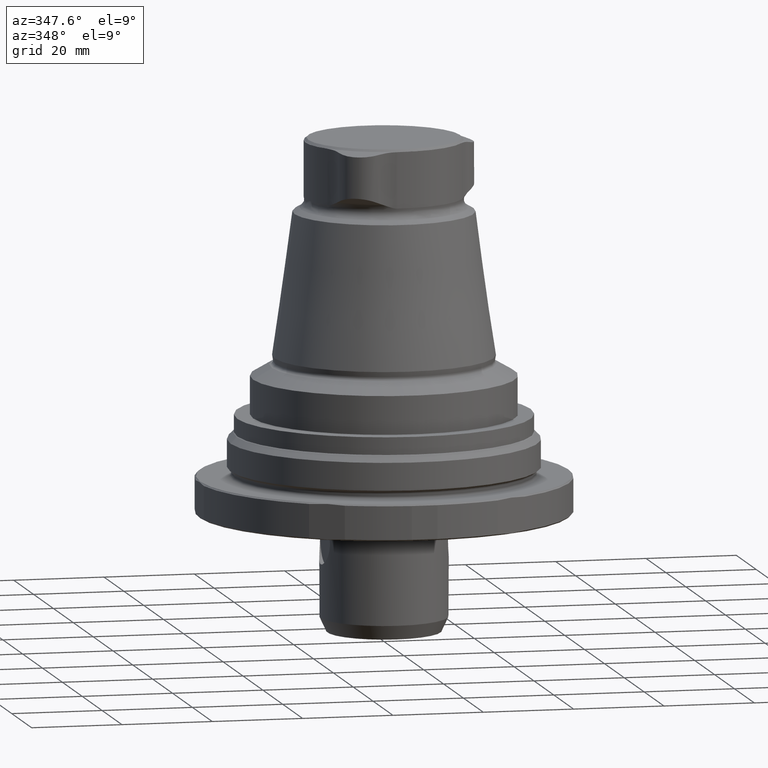
[diagram: clean part render]
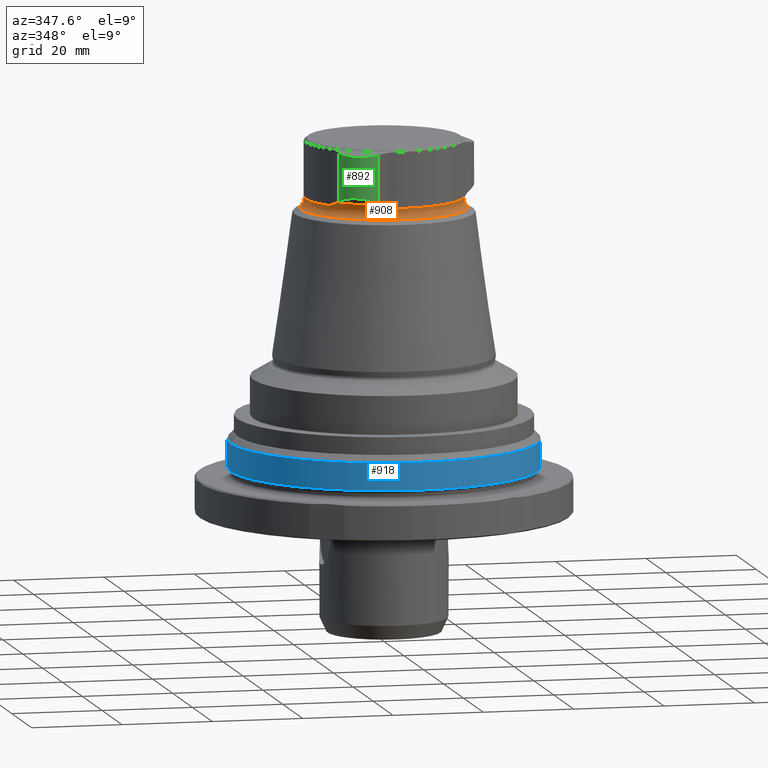
[diagram: same view with three faces highlighted in distinct colors, each labeled with its STEP entity id]
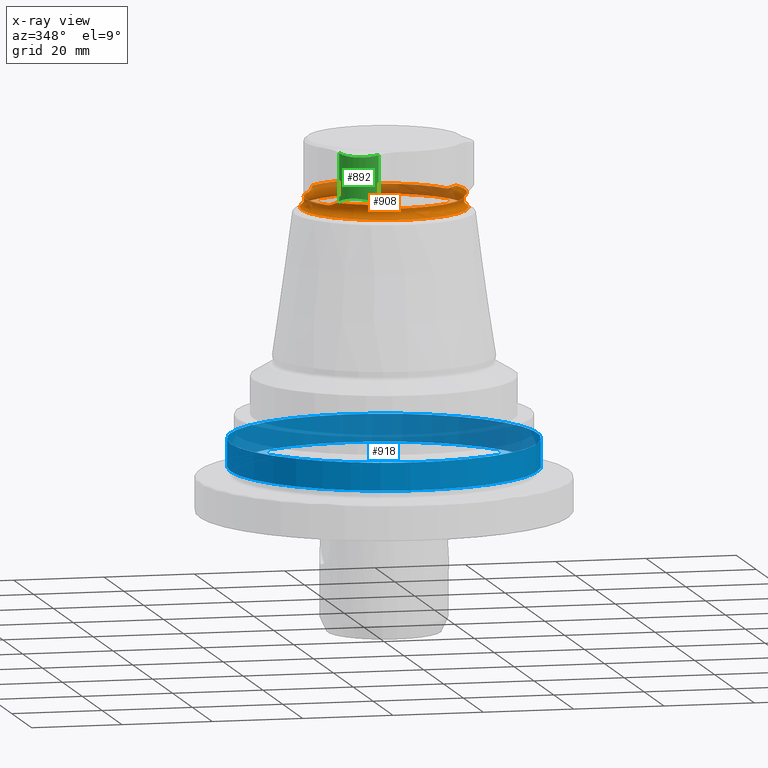
[diagram: x-ray of the same camera — body ghosted, the three highlighted faces saturated]
A machine part, auxiliary view with three faces highlighted in distinct colors.
The next image is the same camera in x-ray (body ghosted, the three faces saturated) — at least one of them is partly hidden behind the body in this view.
Their STEP definitions:

[orange] entity #908 — the highlighted toroidal blend (fillet) surface has major radius 19.28 mm and minor (blend) radius 2 mm.
#20=TOROIDAL_SURFACE('',#1001,19.28,2.);
#122=CIRCLE('',#985,17.9944247806269);
#123=CIRCLE('',#988,17.38);
#124=CIRCLE('',#991,17.9944247806269);
#125=CIRCLE('',#994,17.38);
#126=CIRCLE('',#997,17.9944247806269);
#127=CIRCLE('',#1000,17.38);
#128=CIRCLE('',#1002,18.28);
#257=ORIENTED_EDGE('',*,*,#465,.F.);
#258=ORIENTED_EDGE('',*,*,#464,.T.);
#259=ORIENTED_EDGE('',*,*,#463,.T.);
#260=ORIENTED_EDGE('',*,*,#460,.T.);
#261=ORIENTED_EDGE('',*,*,#459,.T.);
#262=ORIENTED_EDGE('',*,*,#457,.T.);
#263=ORIENTED_EDGE('',*,*,#455,.T.);
#264=ORIENTED_EDGE('',*,*,#452,.T.);
#265=ORIENTED_EDGE('',*,*,#451,.T.);
#266=ORIENTED_EDGE('',*,*,#449,.T.);
#267=ORIENTED_EDGE('',*,*,#447,.T.);
#268=ORIENTED_EDGE('',*,*,#444,.T.);
#269=ORIENTED_EDGE('',*,*,#443,.T.);
#443=EDGE_CURVE('',#561,#562,#641,.T.);
#444=EDGE_CURVE('',#563,#561,#122,.T.);
#447=EDGE_CURVE('',#564,#563,#643,.T.);
#449=EDGE_CURVE('',#565,#564,#123,.T.);
#451=EDGE_CURVE('',#566,#565,#645,.T.);
#452=EDGE_CURVE('',#567,#566,#124,.T.);
#455=EDGE_CURVE('',#568,#567,#647,.T.);
#457=EDGE_CURVE('',#569,#568,#125,.T.);
#459=EDGE_CURVE('',#570,#569,#649,.T.);
#460=EDGE_CURVE('',#571,#570,#126,.T.);
#463=EDGE_CURVE('',#572,#571,#651,.T.);
#464=EDGE_CURVE('',#562,#572,#127,.T.);
#465=EDGE_CURVE('',#573,#573,#128,.T.);
#561=VERTEX_POINT('',#1507);
#562=VERTEX_POINT('',#1509);
#563=VERTEX_POINT('',#1517);
#564=VERTEX_POINT('',#1524);
#565=VERTEX_POINT('',#1532);
#566=VERTEX_POINT('',#1539);
#567=VERTEX_POINT('',#1547);
#568=VERTEX_POINT('',#1554);
#569=VERTEX_POINT('',#1562);
#570=VERTEX_POINT('',#1569);
#571=VERTEX_POINT('',#1577);
#572=VERTEX_POINT('',#1584);
#573=VERTEX_POINT('',#1594);
#641=B_SPLINE_CURVE_WITH_KNOTS('',3,(#1510,#1511,#1512,#1513,#1514),
 .UNSPECIFIED.,.F.,.F.,(4,1,4),(6.35686144103671E-7,0.0015978311918001,
0.00319502669745609),.UNSPECIFIED.);
#643=B_SPLINE_CURVE_WITH_KNOTS('',3,(#1525,#1526,#1527,#1528,#1529),
 .UNSPECIFIED.,.F.,.F.,(4,1,4),(1.97137655947821E-7,0.00159333802635267,
0.00318647891504939),.UNSPECIFIED.);
#645=B_SPLINE_CURVE_WITH_KNOTS('',3,(#1540,#1541,#1542,#1543,#1544),
 .UNSPECIFIED.,.F.,.F.,(4,1,4),(6.35686110278571E-7,0.00159783085864817,
0.00319502603118605),.UNSPECIFIED.);
#647=B_SPLINE_CURVE_WITH_KNOTS('',3,(#1555,#1556,#1557,#1558,#1559),
 .UNSPECIFIED.,.F.,.F.,(4,1,4),(2.20521440774518E-7,0.00159336113449156,
0.00318650174754235),.UNSPECIFIED.);
#649=B_SPLINE_CURVE_WITH_KNOTS('',3,(#1570,#1571,#1572,#1573,#1574),
 .UNSPECIFIED.,.F.,.F.,(4,1,4),(6.3568605650328E-7,0.00159783032874763,
0.00319502497143876),.UNSPECIFIED.);
#651=B_SPLINE_CURVE_WITH_KNOTS('',3,(#1585,#1586,#1587,#1588,#1589),
 .UNSPECIFIED.,.F.,.F.,(4,1,4),(2.35223058471433E-7,0.00159337566279852,
0.00318651610253857),.UNSPECIFIED.);
#698=EDGE_LOOP('',(#257));
#699=EDGE_LOOP('',(#258,#259,#260,#261,#262,#263,#264,#265,#266,#267,#268,
#269));
#793=FACE_BOUND('',#698,.T.);
#794=FACE_BOUND('',#699,.T.);
#908=ADVANCED_FACE('',(#793,#794),#20,.F.);
#985=AXIS2_PLACEMENT_3D('',#1516,#1133,#1134);
#988=AXIS2_PLACEMENT_3D('',#1533,#1141,#1142);
#991=AXIS2_PLACEMENT_3D('',#1546,#1147,#1148);
#994=AXIS2_PLACEMENT_3D('',#1563,#1155,#1156);
#997=AXIS2_PLACEMENT_3D('',#1576,#1161,#1162);
#1000=AXIS2_PLACEMENT_3D('',#1591,#1168,#1169);
#1001=AXIS2_PLACEMENT_3D('',#1592,#1170,#1171);
#1002=AXIS2_PLACEMENT_3D('',#1593,#1172,#1173);
#1133=DIRECTION('',(1.22461692971323E-16,-7.49836836562635E-33,-1.));
#1134=DIRECTION('',(-1.,6.12303176911189E-17,-1.22461692971323E-16));
#1141=DIRECTION('',(1.22461692971323E-16,-7.49836836562635E-33,-1.));
#1142=DIRECTION('',(-1.,6.12303176911189E-17,-1.22461692971323E-16));
#1147=DIRECTION('',(1.22461692971323E-16,-7.49836836562635E-33,-1.));
#1148=DIRECTION('',(-1.,6.12303176911189E-17,-1.22461692971323E-16));
#1155=DIRECTION('',(1.22461692971323E-16,-7.49836836562635E-33,-1.));
#1156=DIRECTION('',(-1.,6.12303176911189E-17,-1.22461692971323E-16));
#1161=DIRECTION('',(1.22461692971323E-16,-7.49836836562635E-33,-1.));
#1162=DIRECTION('',(-1.,6.12303176911189E-17,-1.22461692971323E-16));
#1168=DIRECTION('',(1.22461692971323E-16,-7.49836836562635E-33,-1.));
#1169=DIRECTION('',(-1.,6.12303176911189E-17,-1.22461692971323E-16));
#1170=DIRECTION('',(1.22461692971323E-16,-7.49836836562635E-33,-1.));
#1171=DIRECTION('',(-1.,6.12303176911189E-17,-1.22461692971323E-16));
#1172=DIRECTION('',(1.22461692971323E-16,-7.49836836562635E-33,-1.));
#1173=DIRECTION('',(-1.,6.12303176911189E-17,-1.22461692971323E-16));
#1507=CARTESIAN_POINT('',(-13.1844579384725,-12.2461990860139,61.0160728241915));
#1509=CARTESIAN_POINT('',(-14.5433864753958,-9.51600282825072,60.1084837377934));
#1510=CARTESIAN_POINT('',(-13.1844579384718,-12.2461990860133,61.0160728241922));
#1511=CARTESIAN_POINT('',(-13.3557624744756,-11.7684289393792,60.8485594541288));
#1512=CARTESIAN_POINT('',(-13.7430631802596,-10.8589171321317,60.4659393934881));
#1513=CARTESIAN_POINT('',(-14.2485410599591,-9.96661753534753,60.1084837377905));
#1514=CARTESIAN_POINT('',(-14.5433864753951,-9.51600282825074,60.1084837377904));
#1516=CARTESIAN_POINT('',(1.46769010863797E-15,-8.98671316240156E-32,61.0160728241915));
#1517=CARTESIAN_POINT('',(-4.0132905390536,-17.5411750528516,61.0160728241915));
#1524=CARTESIAN_POINT('',(-0.969406954051809,-17.3529435588731,60.1084837377934));
#1525=CARTESIAN_POINT('',(-0.96940695405181,-17.3529435588731,60.1084837377934));
#1526=CARTESIAN_POINT('',(-1.50816065140855,-17.3228465566575,60.1084837377934));
#1527=CARTESIAN_POINT('',(-2.5276528809224,-17.3310864051679,60.4643411911177));
#1528=CARTESIAN_POINT('',(-3.51330235117727,-17.4505398563382,60.8483666425664));
#1529=CARTESIAN_POINT('',(-4.0132905390535,-17.541175052851,61.016072824192));
#1532=CARTESIAN_POINT('',(15.5127934294476,-7.83694073062241,60.1084837377934));
#1533=CARTESIAN_POINT('',(-7.64773027486394E-17,4.68272954345907E-33,60.1084837377934));
#1539=CARTESIAN_POINT('',(17.1977484775261,-5.29497596683764,61.0160728241915));
#1540=CARTESIAN_POINT('',(17.1977484775253,-5.29497596683733,61.0160728241922));
#1541=CARTESIAN_POINT('',(16.8696397123536,-5.6822150599481,60.8485594801569));
#1542=CARTESIAN_POINT('',(16.2756298563554,-6.47238305001316,60.4659395692859));
#1543=CARTESIAN_POINT('',(15.7556146861175,-7.35628939938424,60.1084837377908));
#1544=CARTESIAN_POINT('',(15.5127934294473,-7.83694073062188,60.1084837377907));
#1546=CARTESIAN_POINT('',(1.46769010863797E-15,-8.98671316240156E-32,61.0160728241915));
#1547=CARTESIAN_POINT('',(17.1977484775261,5.29497596683763,61.0160728241915));
#1554=CARTESIAN_POINT('',(15.5127934294476,7.8369407306223,60.1084837377934));
#1555=CARTESIAN_POINT('',(15.5127934294476,7.8369407306223,60.1084837377934));
#1556=CARTESIAN_POINT('',(15.7561051581389,7.35531853697712,60.1084837377934));
#1557=CARTESIAN_POINT('',(16.2729875744631,6.47653147093607,60.464341093761));
#1558=CARTESIAN_POINT('',(16.8692619580383,5.68266089149592,60.8483666206682));
#1559=CARTESIAN_POINT('',(17.1977484775256,5.29497596683744,61.016072824192));
#1562=CARTESIAN_POINT('',(-0.969406954051804,17.3529435588731,60.1084837377934));
#1563=CARTESIAN_POINT('',(-7.64773027486394E-17,4.68272954345907E-33,60.1084837377934));
#1569=CARTESIAN_POINT('',(-4.01329053905358,17.5411750528516,61.0160728241915));
#1570=CARTESIAN_POINT('',(-4.01329053905341,17.5411750528507,61.0160728241922));
#1571=CARTESIAN_POINT('',(-3.51387738791884,17.4506440959366,60.8485595215557));
#1572=CARTESIAN_POINT('',(-2.53256722910757,17.3313005024,60.4659398488993));
#1573=CARTESIAN_POINT('',(-1.50707448211518,17.3229072345509,60.1084837377914));
#1574=CARTESIAN_POINT('',(-0.969406954052059,17.3529435588727,60.1084837377913));
#1576=CARTESIAN_POINT('',(1.46769010863797E-15,-8.98671316240156E-32,61.0160728241915));
#1577=CARTESIAN_POINT('',(-13.1844579384725,12.2461990860139,61.0160728241915));
#1584=CARTESIAN_POINT('',(-14.5433864753958,9.51600282825071,60.1084837377934));
#1585=CARTESIAN_POINT('',(-14.5433864753958,9.51600282825071,60.1084837377934));
#1586=CARTESIAN_POINT('',(-14.2479455533474,9.96752765306905,60.1084837377934));
#1587=CARTESIAN_POINT('',(-13.7453345115463,10.8545549561262,60.4643410325569));
#1588=CARTESIAN_POINT('',(-13.3559596862253,11.7678789137431,60.8483666069014));
#1589=CARTESIAN_POINT('',(-13.1844579384721,12.2461990860136,61.016072824192));
#1591=CARTESIAN_POINT('',(-7.64773027486394E-17,4.68272954345907E-33,60.1084837377934));
#1592=CARTESIAN_POINT('',(0.,0.,59.4839839379536));
#1593=CARTESIAN_POINT('',(1.86742218163645E-15,-1.14342853445042E-31,57.7519331303847));
#1594=CARTESIAN_POINT('',(-18.28,1.11929020739365E-15,57.7519331303847));

[blue] entity #918 — the highlighted cylindrical surface (bore or boss wall) has radius 34 mm, axis along (-0, -0, -1).
#138=CIRCLE('',#1021,34.);
#139=CIRCLE('',#1023,34.);
#288=ORIENTED_EDGE('',*,*,#475,.F.);
#289=ORIENTED_EDGE('',*,*,#476,.T.);
#475=EDGE_CURVE('',#583,#583,#138,.T.);
#476=EDGE_CURVE('',#584,#584,#139,.T.);
#583=VERTEX_POINT('',#1623);
#584=VERTEX_POINT('',#1626);
#718=EDGE_LOOP('',(#288));
#719=EDGE_LOOP('',(#289));
#813=FACE_BOUND('',#718,.T.);
#814=FACE_BOUND('',#719,.T.);
#873=CYLINDRICAL_SURFACE('',#1022,34.);
#918=ADVANCED_FACE('',(#813,#814),#873,.T.);
#1021=AXIS2_PLACEMENT_3D('',#1622,#1210,#1211);
#1022=AXIS2_PLACEMENT_3D('',#1624,#1212,#1213);
#1023=AXIS2_PLACEMENT_3D('',#1625,#1214,#1215);
#1210=DIRECTION('',(-7.30126435159279E-33,-9.52839055771651E-18,-1.));
#1211=DIRECTION('',(-1.,-8.32667268468868E-17,2.89465139560709E-33));
#1212=DIRECTION('',(-7.30126435159279E-33,-9.52839055771651E-18,-1.));
#1213=DIRECTION('',(-1.,-8.32667268468868E-17,2.89465139560709E-33));
#1214=DIRECTION('',(-7.30126435159279E-33,-9.52839055771651E-18,-1.));
#1215=DIRECTION('',(-1.,-8.32667268468868E-17,2.89465139560709E-33));
#1622=CARTESIAN_POINT('',(7.88665112559661E-15,-7.2415768238646E-17,0.999999999999985));
#1623=CARTESIAN_POINT('',(-34.,-2.9034844810328E-15,0.999999999999985));
#1624=CARTESIAN_POINT('',(7.88665112559661E-15,-9.1472549354079E-17,-1.00000000000001));
#1625=CARTESIAN_POINT('',(7.88665112559661E-15,-1.42925858365752E-17,7.09999999999999));
#1626=CARTESIAN_POINT('',(-34.,-2.84536129863073E-15,7.09999999999999));

[green] entity #892 — the highlighted cylindrical surface (edge-blend (fillet) strip) has radius 6.35 mm, axis along (0, 0, 1).
#25=LINE('',#1406,#53);
#26=LINE('',#1417,#54);
#53=VECTOR('',#1110,1000.);
#54=VECTOR('',#1111,1000.);
#178=ORIENTED_EDGE('',*,*,#420,.T.);
#179=ORIENTED_EDGE('',*,*,#421,.F.);
#180=ORIENTED_EDGE('',*,*,#422,.F.);
#181=ORIENTED_EDGE('',*,*,#423,.F.);
#420=EDGE_CURVE('',#543,#544,#25,.T.);
#421=EDGE_CURVE('',#545,#544,#628,.T.);
#422=EDGE_CURVE('',#546,#545,#26,.T.);
#423=EDGE_CURVE('',#543,#546,#629,.T.);
#543=VERTEX_POINT('',#1407);
#544=VERTEX_POINT('',#1408);
#545=VERTEX_POINT('',#1416);
#546=VERTEX_POINT('',#1418);
#628=B_SPLINE_CURVE_WITH_KNOTS('',3,(#1409,#1410,#1411,#1412,#1413,#1414,
#1415),.UNSPECIFIED.,.F.,.F.,(4,1,1,1,4),(2.0766815172345E-7,0.00249926787192999,
0.00499832807570825,0.00749738827948651,0.00999644848326478),
 .UNSPECIFIED.);
#629=B_SPLINE_CURVE_WITH_KNOTS('',3,(#1419,#1420,#1421,#1422,#1423,#1424,
#1425),.UNSPECIFIED.,.F.,.F.,(4,1,1,1,4),(2.22767095301831E-7,0.00256277673272078,
0.00512533069834625,0.00768788466397173,0.0102504386295972),
 .UNSPECIFIED.);
#681=EDGE_LOOP('',(#178,#179,#180,#181));
#776=FACE_BOUND('',#681,.T.);
#859=CYLINDRICAL_SURFACE('',#976,6.35);
#892=ADVANCED_FACE('',(#776),#859,.T.);
#976=AXIS2_PLACEMENT_3D('',#1405,#1108,#1109);
#1108=DIRECTION('',(0.,0.,1.));
#1109=DIRECTION('',(1.,-6.12303176911189E-17,0.));
#1110=DIRECTION('',(0.,0.,1.));
#1111=DIRECTION('',(0.,0.,1.));
#1405=CARTESIAN_POINT('',(-6.72500000000001,-11.6480416809007,-46.0210065492642));
#1406=CARTESIAN_POINT('',(-5.07416735422223,-17.7797014542112,-46.0210065492642));
#1407=CARTESIAN_POINT('',(-5.07416735422223,-17.7797014542112,61.4315662257756));
#1408=CARTESIAN_POINT('',(-5.07416735422223,-17.7797014542112,72.0597450497322));
#1409=CARTESIAN_POINT('',(-12.8605894539389,-13.2842085589157,72.0597450497322));
#1410=CARTESIAN_POINT('',(-12.6466533599259,-14.0864641600289,71.9041145756941));
#1411=CARTESIAN_POINT('',(-11.9068940730349,-15.5972771575677,71.6659092088544));
#1412=CARTESIAN_POINT('',(-9.98587036310339,-17.2923747424392,71.5414607373421));
#1413=CARTESIAN_POINT('',(-7.56245300967274,-18.1096319581951,71.6650186118006));
#1414=CARTESIAN_POINT('',(-5.87598384084686,-17.995575276468,71.9041000735754));
#1415=CARTESIAN_POINT('',(-5.07416735422223,-17.7797014542112,72.0597450497322));
#1416=CARTESIAN_POINT('',(-12.8605894539389,-13.2842085589157,72.0597450497322));
#1417=CARTESIAN_POINT('',(-12.8605894539389,-13.2842085589157,-46.0210065492642));
#1418=CARTESIAN_POINT('',(-12.8605894539389,-13.2842085589157,61.4315662257756));
#1419=CARTESIAN_POINT('',(-5.07416735422223,-17.7797014542112,61.4315662257756));
#1420=CARTESIAN_POINT('',(-5.84105683491573,-17.9861718451391,61.7747609224325));
#1421=CARTESIAN_POINT('',(-7.49198443378948,-18.1205780304836,62.3270238801647));
#1422=CARTESIAN_POINT('',(-9.98408407937678,-17.3061129492862,62.6326113819731));
#1423=CARTESIAN_POINT('',(-11.9439393737816,-15.5547882261993,62.3293048699111));
#1424=CARTESIAN_POINT('',(-12.6558470104443,-14.0519881747721,61.7749392093064));
#1425=CARTESIAN_POINT('',(-12.8605894539389,-13.2842085589157,61.4315662257756));